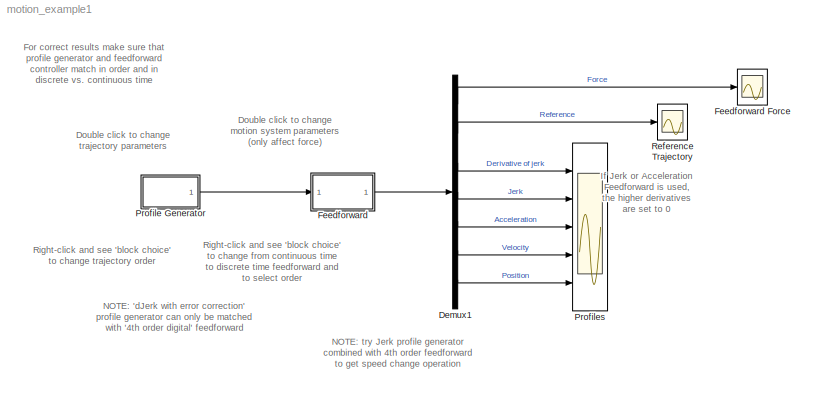
MODEL motion_example1
KIND model
BLOCK [Demux] Demux1
  Outputs = 7
  Ports = [1, 7]
  SID = 1
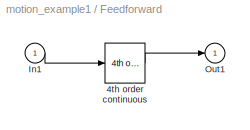
BLOCK [SubSystem] Feedforward
  AttributesFormatString = %<BlockChoice>
  BlockChoice = 4th order continuous
  MemberBlocks = 2nd order continuous,2nd order discrete,3d order continuous,3d order discrete,4th order continuous,4th order digital,4th order discrete
  Ports = [1, 1]
  RequestExecContextInheritance = off
  SID = 2
  ShowPortLabels = none
  TemplateBlock = motion/Feedforward Controllers/Feedforward
BLOCK [Scope] Feedforward Force
  Floating = off
  NumInputPorts = 1
  Ports = [1]
  SID = 3
  ScopeSpecificationString = C++SS(StrPVP('Location','[494, 515, 849, 807]'),StrPVP('Open','on'),StrPVP('TickLabels','OneTimeTick'),StrPVP('ZoomMode','on'),MxPVP('AxesTitles',54,'struct(''axes1'',''%<SignalLabel>'')'),StrPVP('Grid','on'),StrPVP('TimeRange','3'),StrPVP('YMin','-150'),StrPVP('YMax','200'),StrPVP('SaveToWorkspace','off'),StrPVP('SaveName','ScopeData'),StrPVP('DataFormat','StructureWithTime'),StrPVP('LimitDataPoi...<+141ch>
BLOCK [Reference] Feedforward/4th order continuous  REF=motion/Feedforward Controllers/4th order continuous  (lib defined in mdl_0f46438c83f5)
  Ports = [1, 1]
  SID = 2::2
  SourceBlock = motion/Feedforward Controllers/4th order continuous
  SourceType = Continuous Time Feedforward
  c = 6e5
  k1 = 10
  k12 = 500
  k2 = 10
  m1 = 20
  m2 = 10
BLOCK [Inport] Feedforward/In1
  IconDisplay = Port number
  SID = 2::1
BLOCK [Outport] Feedforward/Out1
  IconDisplay = Port number
  SID = 2::3
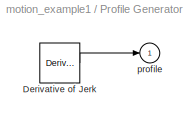
BLOCK [SubSystem] Profile Generator
  AttributesFormatString = %<BlockChoice>
  BlockChoice = Derivative of Jerk
  MemberBlocks = Acceleration,Derivative of Jerk,Jerk,dJerk with error correction
  Ports = [0, 1]
  RequestExecContextInheritance = off
  SID = 4
  ShowPortLabels = none
  TemplateBlock = motion/Profile Generators/Profile Generator
BLOCK [Reference] Profile Generator/Derivative of Jerk  REF=motion/Profile Generators/Derivative of Jerk  (lib defined in mdl_0f46438c83f5)
  Ports = [0, 1]
  SID = 4::1
  SourceBlock = motion/Profile Generators/Derivative of Jerk
  SourceType = 4th Order Profile Generator
  Ts = 1e-2
  a = 5
  d = 1000
  j = 50
  t0 = .3
  v = 1
  x = 1
BLOCK [Outport] Profile Generator/profile
  IconDisplay = Port number
  SID = 4::2
BLOCK [Scope] Profiles
  Floating = off
  NumInputPorts = 5
  Ports = [5]
  SID = 5
  ScopeSpecificationString = C++SS(StrPVP('Location','[858, 53, 1213, 808]'),StrPVP('Open','on'),StrPVP('TickLabels','OneTimeTick'),StrPVP('ZoomMode','on'),MxPVP('AxesTitles',54,'struct(''axes1'',''%<SignalLabel>'',''axes2'',''%<SignalLabel>'',''axes3'',''%<SignalLabel>'',''axes4'',''%<SignalLabel>'',''axes5'',''%<SignalLabel>'')'),StrPVP('Grid','on'),StrPVP('TimeRange','3'),StrPVP('YMin','-1000~-100~-5~0~-0.5'),StrPVP('YMax'...<+290ch>
BLOCK [Scope] Reference Trajectory
  Floating = off
  NumInputPorts = 1
  Ports = [1]
  SID = 6
  ScopeSpecificationString = C++SS(StrPVP('Location','[126, 514, 481, 806]'),StrPVP('Open','on'),StrPVP('TickLabels','OneTimeTick'),StrPVP('ZoomMode','yonly'),MxPVP('AxesTitles',54,'struct(''axes1'',''%<SignalLabel>'')'),StrPVP('Grid','on'),StrPVP('TimeRange','3'),StrPVP('YMin','-0.2'),StrPVP('YMax','1.2'),StrPVP('SaveToWorkspace','off'),StrPVP('SaveName','ScopeData1'),StrPVP('DataFormat','StructureWithTime'),StrPVP('LimitDat...<+145ch>
ANNOTATION (root): Double click to change\nmotion system parameters\n(only affect force)
ANNOTATION (root): Double click to change\ntrajectory parameters
ANNOTATION (root): For correct results make sure that \nprofile generator and feedforward \ncontroller match in order and in \ndiscrete vs. continuous time
ANNOTATION (root): If Jerk or Acceleration\nFeedforward is used, \nthe higher derivatives \nare set to 0
ANNOTATION (root): NOTE: 'dJerk with error correction'\nprofile generator can only be matched\nwith '4th order digital' feedforward
ANNOTATION (root): NOTE: try Jerk profile generator\ncombined with 4th order feedforward\nto get speed change operation
ANNOTATION (root): Right-click and see 'block choice'\nto change from continuous time \nto discrete time feedforward and \nto select order
ANNOTATION (root): Right-click and see 'block choice'\nto change trajectory order
LINE Demux1:1 -> Feedforward Force:1
LINE Demux1:2 -> Reference Trajectory:1
LINE Demux1:3 -> Profiles:1
LINE Demux1:4 -> Profiles:2
LINE Demux1:5 -> Profiles:3
LINE Demux1:6 -> Profiles:4
LINE Demux1:7 -> Profiles:5
LINE Feedforward/4th order continuous:1 -> Feedforward/Out1:1
LINE Feedforward/In1:1 -> Feedforward/4th order continuous:1
LINE Feedforward:1 -> Demux1:1
LINE Profile Generator/Derivative of Jerk:1 -> Profile Generator/profile:1
LINE Profile Generator:1 -> Feedforward:1
